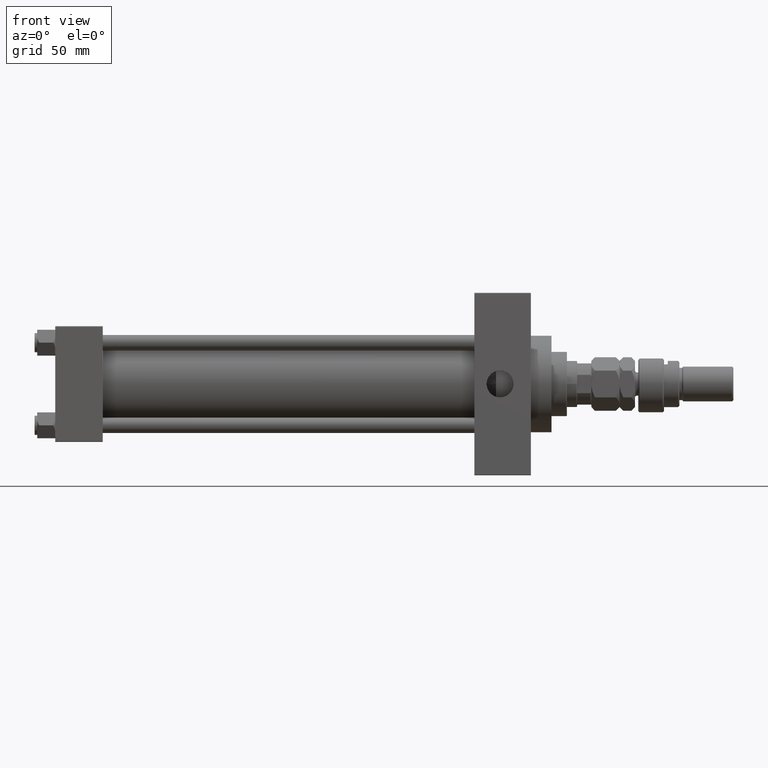
[diagram: clean part render]
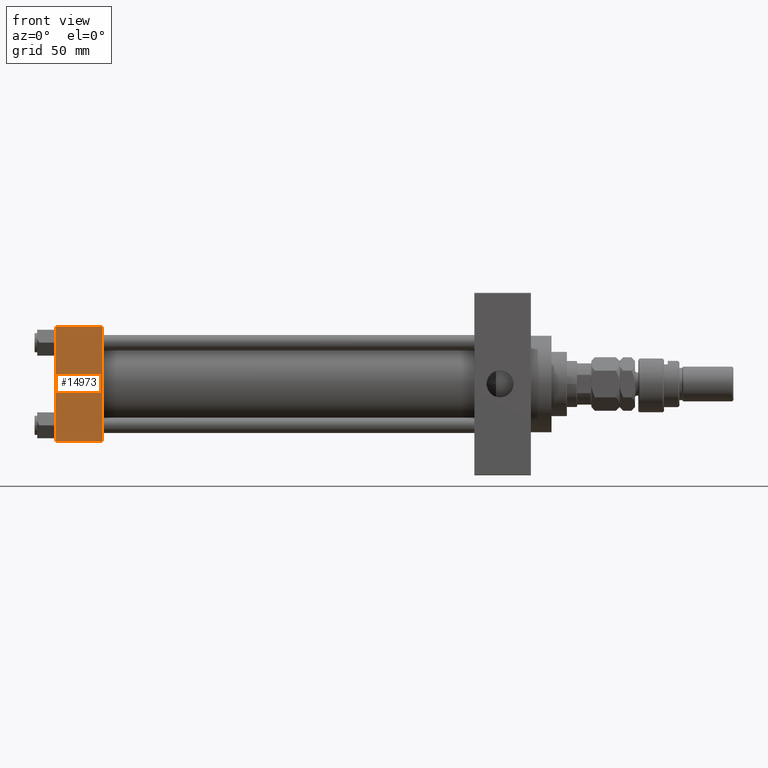
[diagram: same view with one face highlighted and labeled with its STEP entity id]
A machine part, front view. The second image highlights one B-rep face of the part: STEP entity #14973.
In plain terms, the highlighted planar face has unit normal (0, 1, 0).
Its self-contained STEP definition (entity closure, byte-faithful):
#811 = EDGE_CURVE ( 'NONE', #41996, #2685, #37651, .T. ) ;
#2685 = VERTEX_POINT ( 'NONE', #21086 ) ;
#3821 = DIRECTION ( 'NONE',  ( -0.000000000000000000, 1.000000000000000000, 7.709882115452478166E-17 ) ) ;
#5049 = CARTESIAN_POINT ( 'NONE',  ( 37.00000000000000000, -45.00000000000000000, -44.49999999999998579 ) ) ;
#5780 = EDGE_CURVE ( 'NONE', #41996, #24096, #38618, .T. ) ;
#6102 = EDGE_LOOP ( 'NONE', ( #49108, #21580, #19994, #47216 ) ) ;
#6822 = VERTEX_POINT ( 'NONE', #44431 ) ;
#8871 = LINE ( 'NONE', #5049, #31042 ) ;
#10668 = CARTESIAN_POINT ( 'NONE',  ( 37.00000000000000000, -45.00000000000000711, 45.00000000000000000 ) ) ;
#13070 = DIRECTION ( 'NONE',  ( 0.000000000000000000, 7.709882115452476934E-17, -1.000000000000000000 ) ) ;
#13236 = CARTESIAN_POINT ( 'NONE',  ( 0.000000000000000000, -45.00000000000000711, 44.49999999999997158 ) ) ;
#13559 = VECTOR ( 'NONE', #27150, 1000.000000000000000 ) ;
#14450 = EDGE_CURVE ( 'NONE', #24096, #6822, #32665, .T. ) ;
#14973 = ADVANCED_FACE ( 'NONE', ( #38927 ), #22884, .F. ) ;
#18358 = VECTOR ( 'NONE', #38149, 1000.000000000000000 ) ;
#19515 = AXIS2_PLACEMENT_3D ( 'NONE', #30786, #3821, #42496 ) ;
#19994 = ORIENTED_EDGE ( 'NONE', *, *, #811, .F. ) ;
#20307 = EDGE_CURVE ( 'NONE', #6822, #2685, #8871, .T. ) ;
#21086 = CARTESIAN_POINT ( 'NONE',  ( 37.00000000000000000, -45.00000000000000000, -44.49999999999995737 ) ) ;
#21580 = ORIENTED_EDGE ( 'NONE', *, *, #20307, .T. ) ;
#22884 = PLANE ( 'NONE',  #19515 ) ;
#24096 = VERTEX_POINT ( 'NONE', #13236 ) ;
#27150 = DIRECTION ( 'NONE',  ( -1.000000000000000000, 0.000000000000000000, 0.000000000000000000 ) ) ;
#30786 = CARTESIAN_POINT ( 'NONE',  ( 37.00000000000000000, -45.00000000000000711, 45.00000000000000000 ) ) ;
#31042 = VECTOR ( 'NONE', #40655, 1000.000000000000000 ) ;
#32665 = LINE ( 'NONE', #47945, #49619 ) ;
#34808 = CARTESIAN_POINT ( 'NONE',  ( 37.00000000000000000, -45.00000000000000711, 44.49999999999997158 ) ) ;
#37450 = CARTESIAN_POINT ( 'NONE',  ( 37.00000000000000000, -45.00000000000000711, 44.49999999999997158 ) ) ;
#37651 = LINE ( 'NONE', #10668, #18358 ) ;
#38149 = DIRECTION ( 'NONE',  ( 0.000000000000000000, 7.709882115452476934E-17, -1.000000000000000000 ) ) ;
#38618 = LINE ( 'NONE', #34808, #13559 ) ;
#38927 = FACE_OUTER_BOUND ( 'NONE', #6102, .T. ) ;
#40655 = DIRECTION ( 'NONE',  ( 1.000000000000000000, 0.000000000000000000, 0.000000000000000000 ) ) ;
#41996 = VERTEX_POINT ( 'NONE', #37450 ) ;
#42496 = DIRECTION ( 'NONE',  ( 0.000000000000000000, -7.709882115452478166E-17, 1.000000000000000000 ) ) ;
#44431 = CARTESIAN_POINT ( 'NONE',  ( 0.000000000000000000, -45.00000000000000000, -44.49999999999995737 ) ) ;
#47216 = ORIENTED_EDGE ( 'NONE', *, *, #5780, .T. ) ;
#47945 = CARTESIAN_POINT ( 'NONE',  ( 0.000000000000000000, -45.00000000000000711, 45.00000000000000000 ) ) ;
#49108 = ORIENTED_EDGE ( 'NONE', *, *, #14450, .T. ) ;
#49619 = VECTOR ( 'NONE', #13070, 1000.000000000000000 ) ;